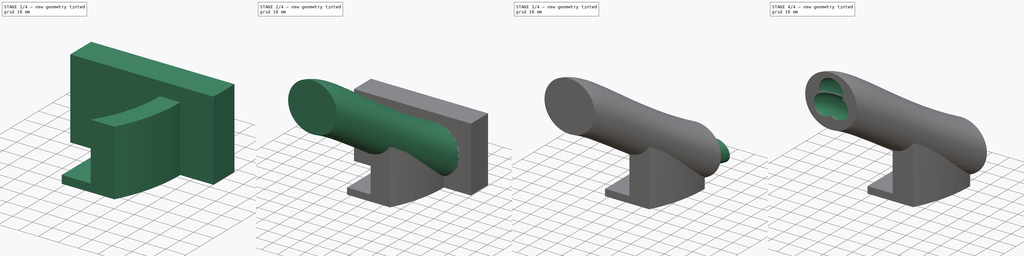
[diagram: build sequence overview — one tinted view per stage of 4, left to right]
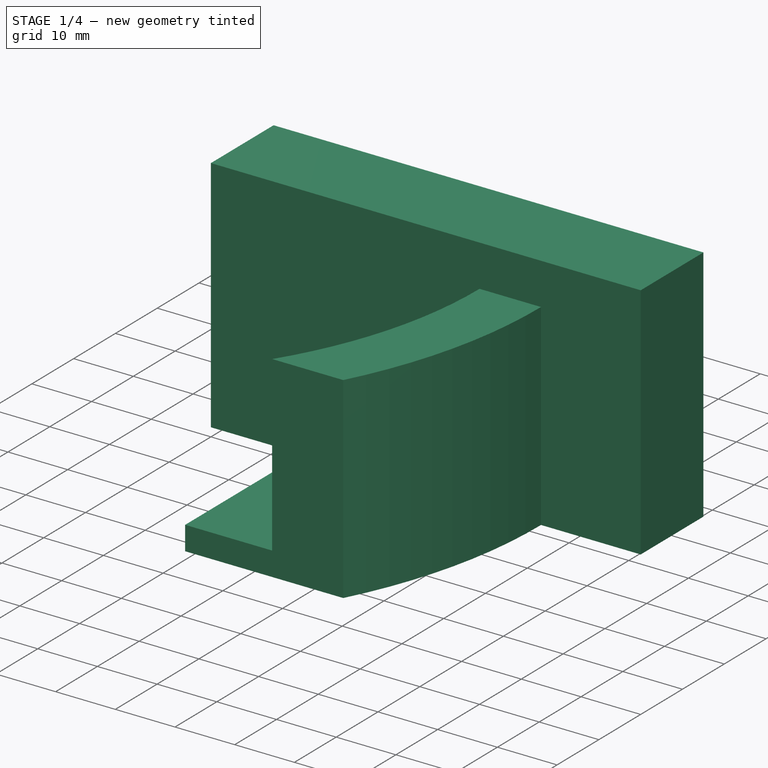
[diagram: stage 1 of 4 — iso view after this stage's code; geometry added in this stage tinted green]
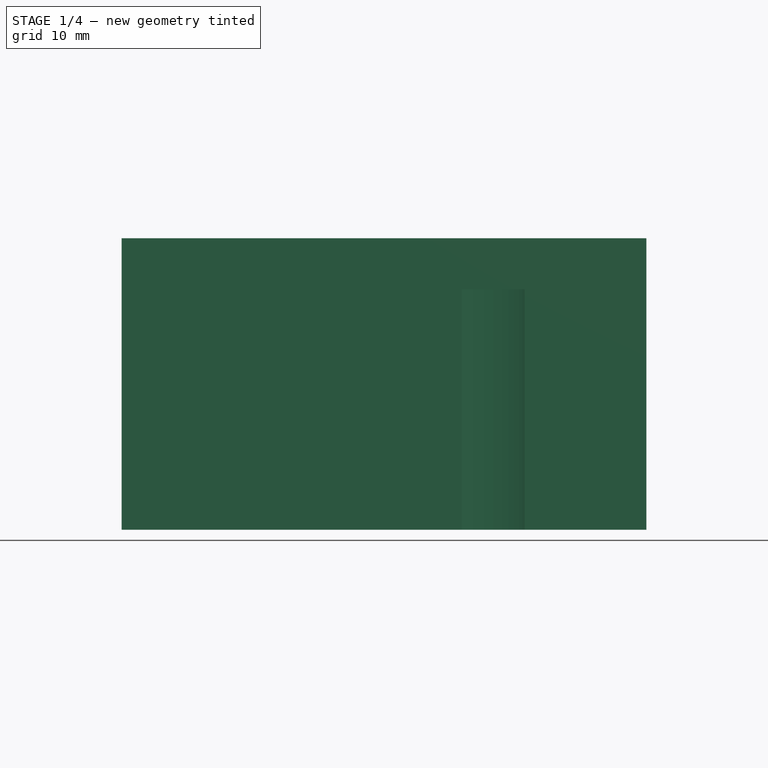
[diagram: stage 1 of 4 — front view after this stage's code; geometry added in this stage tinted green]
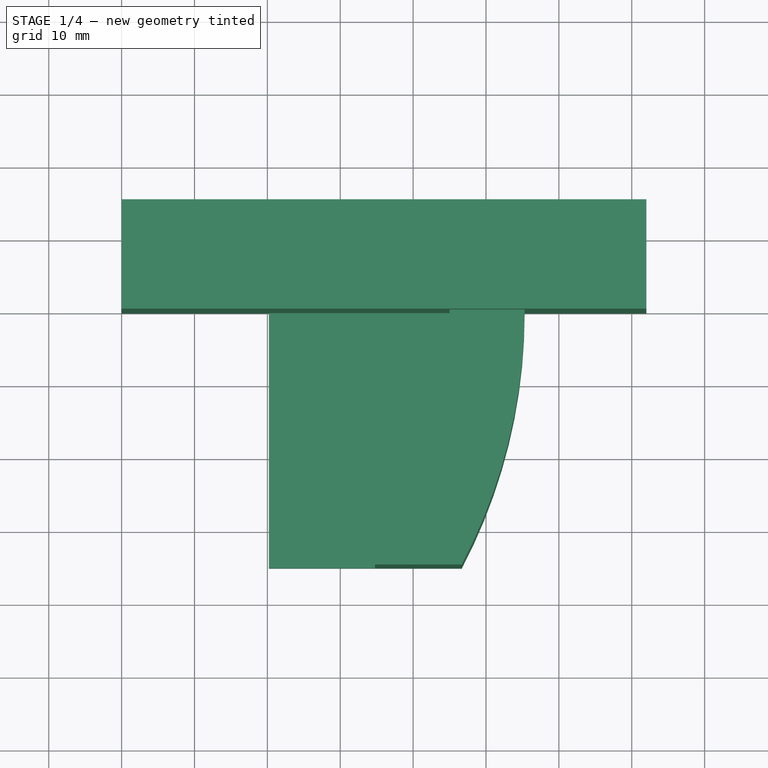
[diagram: stage 1 of 4 — top view after this stage's code; geometry added in this stage tinted green]
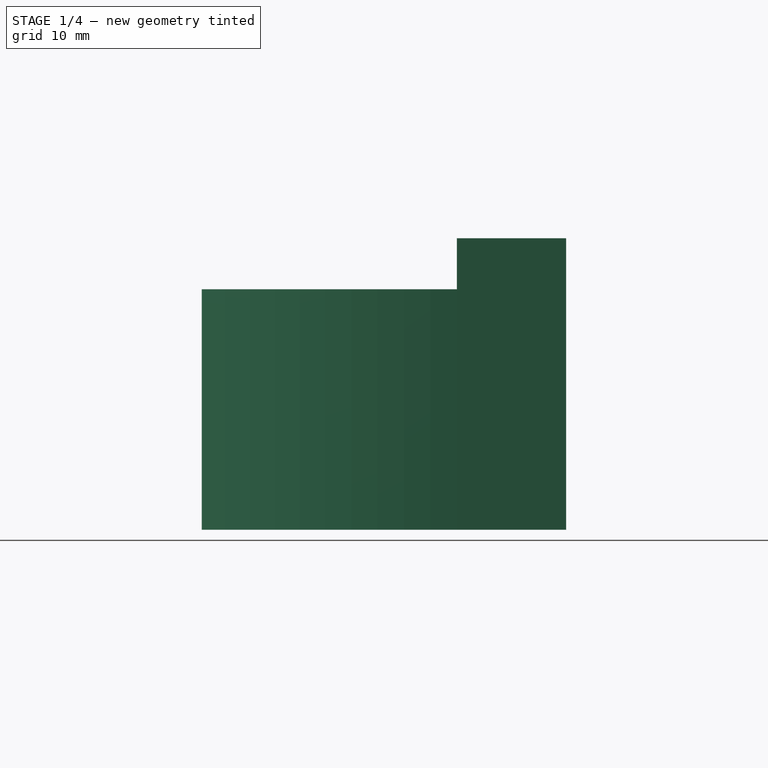
[diagram: stage 1 of 4 — right view after this stage's code; geometry added in this stage tinted green]
FCSTD DOCUMENT  (FreeCAD 1.0R39285 (Git))
Label: threeWayPipeV2
License: All rights reserved
LicenseURL: http://en.wikipedia.org/wiki/All_rights_reserved
objects: Sketcher::SketchObject×32, PartDesign::ShapeBinder×5, PartDesign::AdditivePipe×5, PartDesign::Body×5, Part::MultiFuse×3, Part::Extrusion×2, Part::Cut×2, Part::Part2DObjectPython×1, Part::Box×1
note: 98 computed .brp shape members not serialized (recipe doc carries the construction recipe); baked Part::Feature solids carry a one-line shape summary decoded from their .brp

FEATURE [Sketcher::SketchObject] Sketch039
  ArcFitTolerance = 1e-06
  FullyConstrained = true
  MakeInternals = false
  sketch-geometry (4):
    g0: ArcOfCircle CenterX=-20 CenterY=0 CenterZ=0 NormalX=0 NormalY=0 NormalZ=1 AngleXU=0 Radius=75.3 StartAngle=5.79977 EndAngle=6.28319
    g1: LineSegment StartX=20.2 StartY=0 StartZ=0 EndX=55.3 EndY=-1.84e-14 EndZ=0
    g2: LineSegment StartX=20.2 StartY=0 StartZ=0 EndX=20.2 EndY=-35 EndZ=0
    g3: LineSegment StartX=20.2 StartY=-35 StartZ=0 EndX=46.6715 EndY=-35 EndZ=0
  constraints (13):
    c: PointOnObject(g0,g-1)
    c: PointOnObject(g0,g-1)
    c: DistanceX(g0) = -20
    c: DistanceY(g0) = -35
    c: Radius(g0) = 75.3
    c: PointOnObject(g1,g-1)
    c: Coincident(g1,g0)
    c: DistanceX(g1) = 20.2
    c: Coincident(g2,g1)
    c: Vertical(g2)
    c: Coincident(g3,g2)
    c: Coincident(g3,g0)
    c: Horizontal(g3)
FEATURE [Part::Extrusion] Extrude001
  Base = -> Sketch039
  Dir = (0,0,1)
  DirMode = 2
  FaceMakerClass = Part::FaceMakerBullseye
  FaceMakerMode = 3
  LengthFwd = 4
  LengthRev = 0
  Solid = true
  Symmetric = false
FEATURE [Sketcher::SketchObject] Sketch040
  ArcFitTolerance = 1e-06
  FullyConstrained = true
  MakeInternals = false
  sketch-geometry (4):
    g0: ArcOfCircle CenterX=-20 CenterY=0 CenterZ=0 NormalX=0 NormalY=0 NormalZ=1 AngleXU=0 Radius=75.3 StartAngle=5.79977 EndAngle=6.28319
    g1: ArcOfCircle CenterX=-20 CenterY=0 CenterZ=0 NormalX=0 NormalY=0 NormalZ=1 AngleXU=0 Radius=65 StartAngle=5.71458 EndAngle=6.28319
    g2: LineSegment StartX=34.7723 StartY=-35 StartZ=0 EndX=46.6715 EndY=-35 EndZ=0
    g3: LineSegment StartX=45 StartY=-1.59e-14 StartZ=0 EndX=55.3 EndY=-1.84e-14 EndZ=0
  constraints (13):
    c: PointOnObject(g0,g-1)
    c: PointOnObject(g0,g-1)
    c: DistanceX(g0) = -20
    c: DistanceY(g0) = -35
    c: Radius(g0) = 75.3
    c: Coincident(g1,g0)
    c: PointOnObject(g1,g-1)
    c: Horizontal(g1,g0)
    c: Radius(g1) = 65
    c: Coincident(g2,g1)
    c: Coincident(g2,g0)
    c: Coincident(g3,g1)
    c: Coincident(g3,g0)
FEATURE [Part::Extrusion] Extrude002
  Base = -> Sketch040
  Dir = (0,0,1)
  DirMode = 2
  FaceMakerClass = Part::FaceMakerBullseye
  FaceMakerMode = 3
  LengthFwd = 33
  LengthRev = 0
  Solid = true
  Symmetric = false
FEATURE [Part::Box] Box  label="Cube"
  AttacherType = Attacher::AttachEngine3D
  Height = 40
  Length = 72
  Width = 15
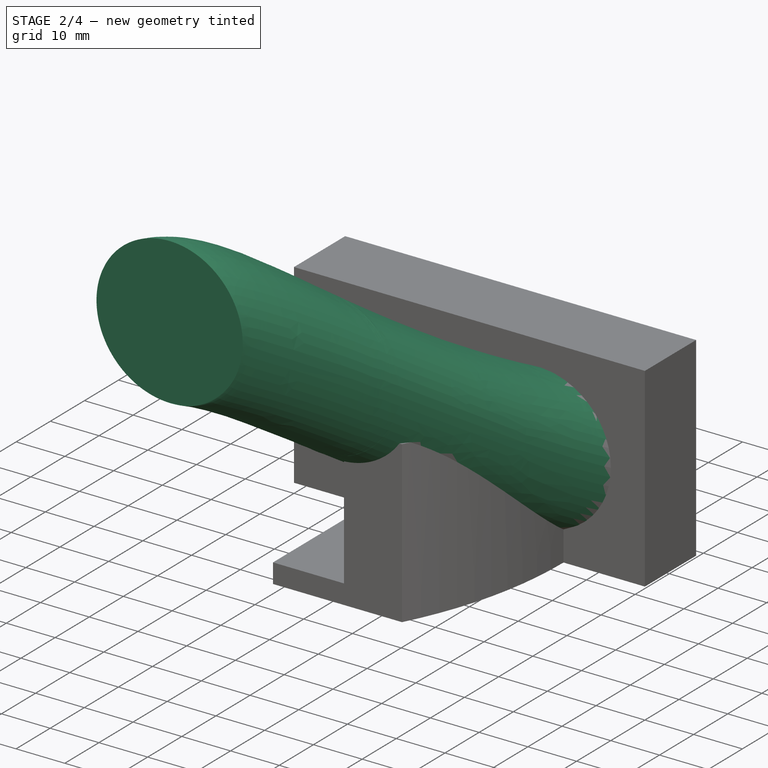
[diagram: stage 2 of 4 — iso view after this stage's code; geometry added in this stage tinted green]
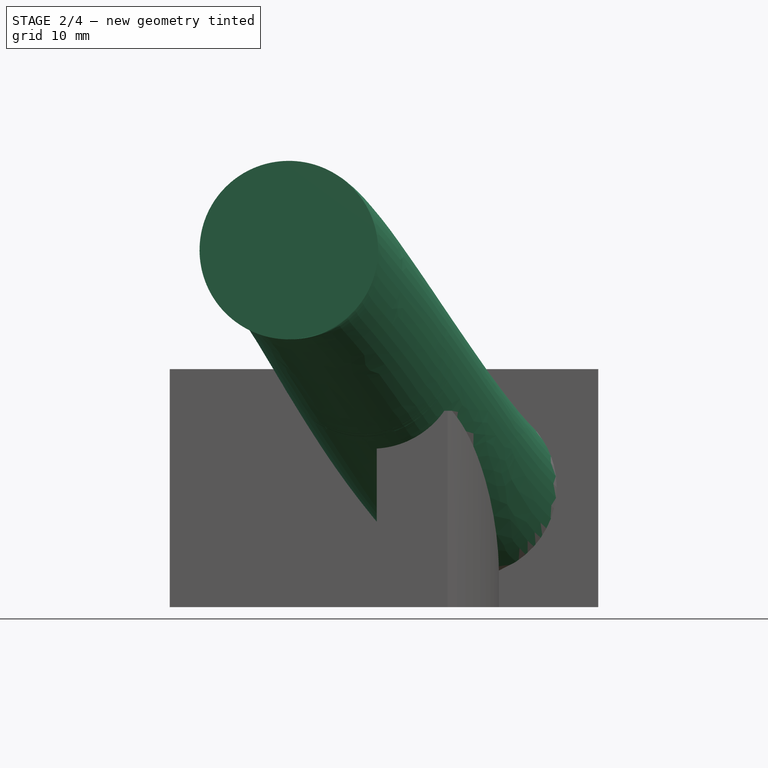
[diagram: stage 2 of 4 — front view after this stage's code; geometry added in this stage tinted green]
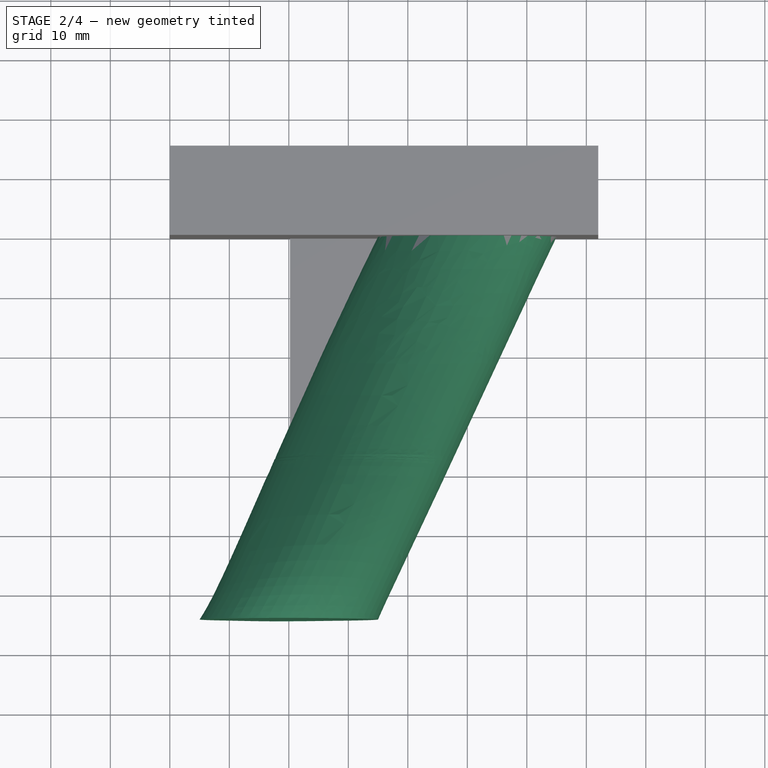
[diagram: stage 2 of 4 — top view after this stage's code; geometry added in this stage tinted green]
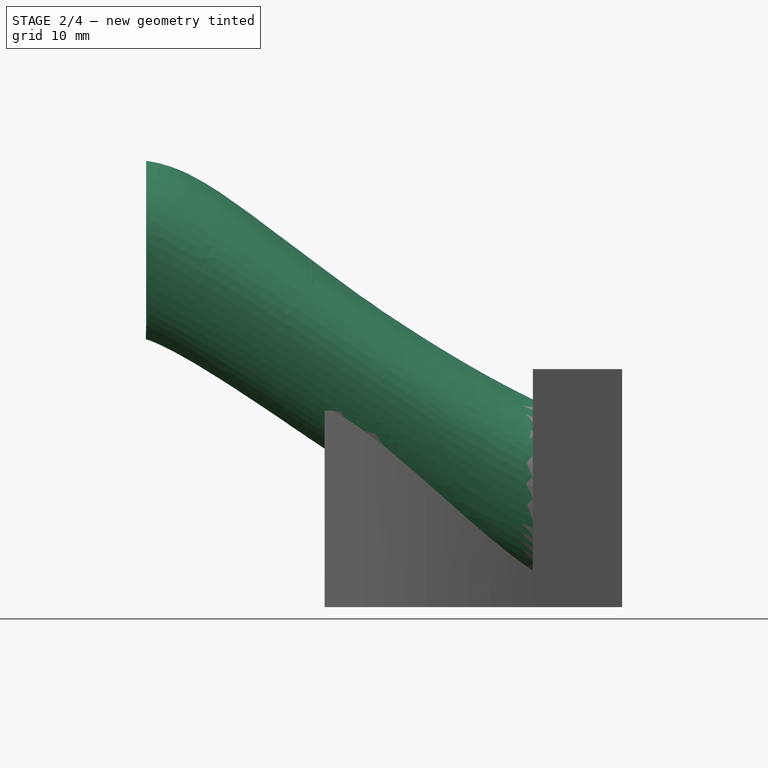
[diagram: stage 2 of 4 — right view after this stage's code; geometry added in this stage tinted green]
FEATURE [PartDesign::Body] Body003  label="below001"
  AllowCompound = false
  Group = -> [Sketch031,Sketch030,Sketch032,Sketch027,Sketch028,Sketch029,AdditivePipe003,CopyBezCurve003]
  Origin = -> Origin003
  Placement = pos=(-4,0,-3) rot=(0,0,1;0rad)
  Tip = -> AdditivePipe003
FEATURE [PartDesign::ShapeBinder] CopyBezCurve004
  TraceSupport = false
FEATURE [Sketcher::SketchObject] Sketch033
  ArcFitTolerance = 1e-06
  AttachmentOffset = pos=(0,0,20) rot=(0,0,1;0rad)
  AttachmentSupport = -> [XY_Plane005]
  FullyConstrained = true
  MakeInternals = false
  MapMode = 5
  Placement = pos=(0,0,20) rot=(0,0,1;0rad)
  sketch-geometry (1):
    g0: LineSegment StartX=50 StartY=0 StartZ=0 EndX=55.7735 EndY=10 EndZ=0
  constraints (4):
    c: PointOnObject(g0,g-1)
    c: DistanceX(g0) = 50
    c: Angle(g0) = 1.0472
    c: DistanceY(g0,g0) = 10
FEATURE [Sketcher::SketchObject] Sketch034
  ArcFitTolerance = 1e-06
  AttachmentOffset = pos=(0,0,60) rot=(0,0,1;0rad)
  AttachmentSupport = -> [XY_Plane005]
  FullyConstrained = true
  MakeInternals = false
  MapMode = 5
  Placement = pos=(0,0,60) rot=(0,0,1;0rad)
  sketch-geometry (1):
    g0: LineSegment StartX=20 StartY=-65 StartZ=0 EndX=25.7735 EndY=-55 EndZ=0
  constraints (4):
    c: DistanceY(g0,g0) = 10
    c: DistanceY(g0) = -65
    c: DistanceX(g0) = 20
    c: Angle(g0) = 1.0472
FEATURE [Sketcher::SketchObject] Sketch035
  ArcFitTolerance = 1e-06
  AttachmentOffset = pos=(0,0,40) rot=(0,0,1;0rad)
  AttachmentSupport = -> [XY_Plane005]
  FullyConstrained = true
  MakeInternals = false
  MapMode = 5
  Placement = pos=(0,0,40) rot=(0,0,1;0rad)
  sketch-geometry (1):
    g0: LineSegment StartX=38.501 StartY=-27.5 StartZ=0 EndX=35 EndY=-32.5 EndZ=0
  constraints (4):
    c: DistanceX(g0) = 35
    c: DistanceY(g0) = -32.5
    c: DistanceY(g0,g0) = 5
    c: Angle(g0) = -2.18166
FEATURE [Sketcher::SketchObject] Sketch036
  ArcFitTolerance = 1e-06
  AttachmentOffset = pos=(0,15,0) rot=(0,0,1;0rad)
  FullyConstrained = true
  MakeInternals = false
  MapMode = 5
  Placement = pos=(0,-65,0) rot=(1,0,0;1.5708rad)
  sketch-geometry (1):
    g0: Circle CenterX=20 CenterY=60 CenterZ=0 NormalX=0 NormalY=0 NormalZ=1 AngleXU=0 Radius=15
  constraints (3):
    c: Radius(g0) = 15
    c: DistanceX(g0) = 20
    c: DistanceY(g0) = 60
FEATURE [Sketcher::SketchObject] Sketch037
  ArcFitTolerance = 1e-06
  FullyConstrained = true
  MakeInternals = false
  MapMode = 5
  Placement = pos=(0,0,0) rot=(1,0,0;1.5708rad)
  sketch-geometry (1):
    g0: Circle CenterX=50 CenterY=20 CenterZ=0 NormalX=0 NormalY=0 NormalZ=1 AngleXU=0 Radius=15
  constraints (3):
    c: Radius(g0) = 15
    c: DistanceX(g0) = 50
    c: DistanceY(g0) = 20
FEATURE [Sketcher::SketchObject] Sketch038
  ArcFitTolerance = 1e-06
  AttachmentOffset = pos=(0,15,0) rot=(0,0,1;0rad)
  FullyConstrained = true
  MakeInternals = false
  MapMode = 5
  Placement = pos=(0,-32.5,0) rot=(1,0,0;1.5708rad)
  sketch-geometry (1):
    g0: Circle CenterX=35 CenterY=40 CenterZ=0 NormalX=0 NormalY=0 NormalZ=1 AngleXU=0 Radius=15
  constraints (3):
    c: Radius(g0) = 15
    c: DistanceX(g0) = 35
    c: DistanceY(g0) = 40
FEATURE [PartDesign::AdditivePipe] AdditivePipe004
  AuxilleryCurvelinear = true
  AuxillerySpineTangent = false
  Binormal = (0,0,0)
  Mode = 0
  Placement = pos=(0,-65,0) rot=(1,0,0;1.5708rad)
  Profile = -> Sketch036
  Sections = -> [Sketch037,Sketch038]
  Spine = -> CopyBezCurve004
  SpineTangent = false
  Suppressed = false
  Transformation = 1
  Transition = 0
FEATURE [Part::MultiFuse] Fusion001
  Shapes = -> [Extrude001,Extrude002]
FEATURE [Part::MultiFuse] Fusion002  label="outer001"
  Shapes = -> [Fusion001,Body004]
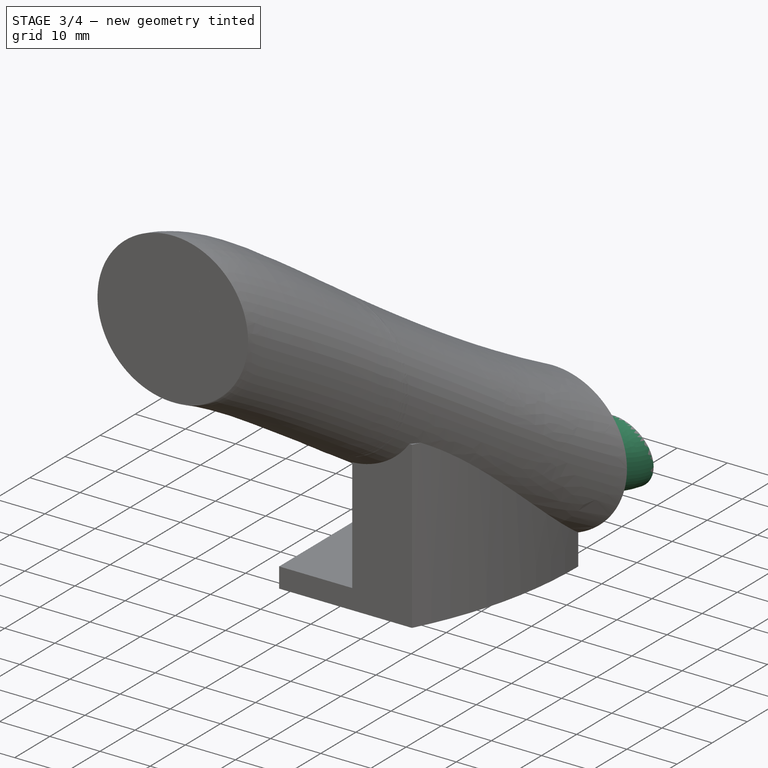
[diagram: stage 3 of 4 — iso view after this stage's code; geometry added in this stage tinted green]
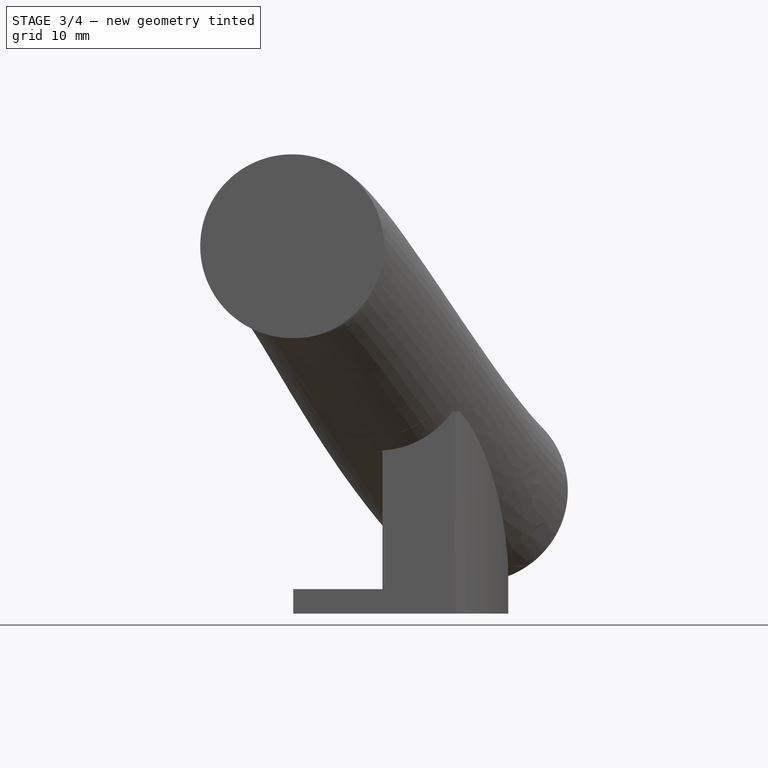
[diagram: stage 3 of 4 — front view after this stage's code; geometry added in this stage tinted green]
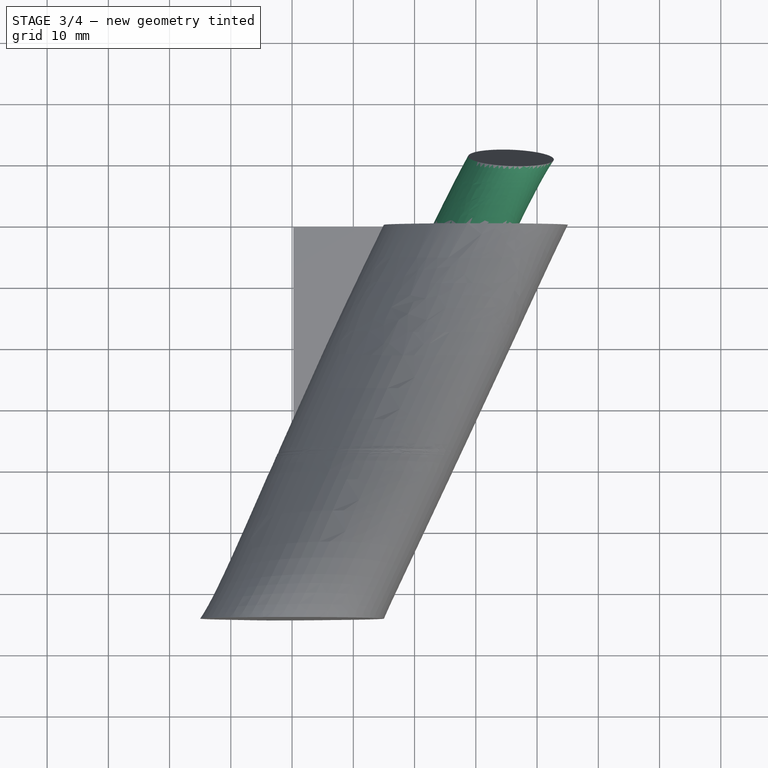
[diagram: stage 3 of 4 — top view after this stage's code; geometry added in this stage tinted green]
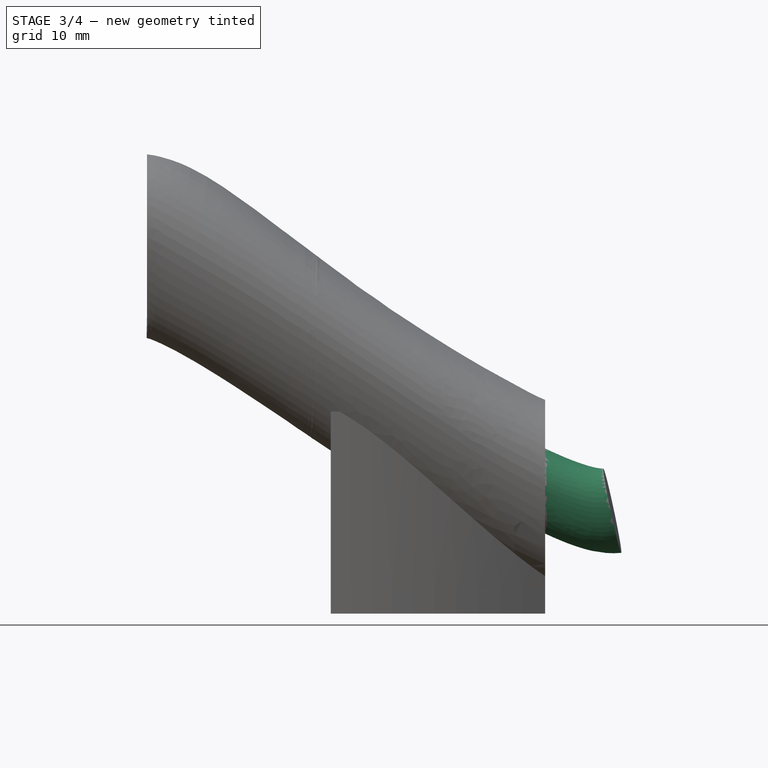
[diagram: stage 3 of 4 — right view after this stage's code; geometry added in this stage tinted green]
FEATURE [PartDesign::Body] Body  label="original"
  AllowCompound = false
  Group = -> [Sketch013,Sketch012,Sketch014,Sketch009,Sketch010,Sketch011,AdditivePipe,CopyBezCurve]
  Origin = -> Origin
  Tip = -> AdditivePipe
FEATURE [PartDesign::ShapeBinder] CopyBezCurve001
  TraceSupport = false
FEATURE [Sketcher::SketchObject] Sketch015
  ArcFitTolerance = 1e-06
  AttachmentOffset = pos=(0,0,20) rot=(0,0,1;0rad)
  AttachmentSupport = -> [XY_Plane002]
  FullyConstrained = true
  MakeInternals = false
  MapMode = 5
  Placement = pos=(0,0,20) rot=(0,0,1;0rad)
  sketch-geometry (1):
    g0: LineSegment StartX=50 StartY=0 StartZ=0 EndX=55.7735 EndY=10 EndZ=0
  constraints (4):
    c: PointOnObject(g0,g-1)
    c: DistanceX(g0) = 50
    c: Angle(g0) = 1.0472
    c: DistanceY(g0,g0) = 10
FEATURE [Sketcher::SketchObject] Sketch016
  ArcFitTolerance = 1e-06
  AttachmentOffset = pos=(0,0,60) rot=(0,0,1;0rad)
  AttachmentSupport = -> [XY_Plane002]
  FullyConstrained = true
  MakeInternals = false
  MapMode = 5
  Placement = pos=(0,0,60) rot=(0,0,1;0rad)
  sketch-geometry (1):
    g0: LineSegment StartX=20 StartY=-65 StartZ=0 EndX=25.7735 EndY=-55 EndZ=0
  constraints (4):
    c: DistanceY(g0,g0) = 10
    c: DistanceY(g0) = -65
    c: DistanceX(g0) = 20
    c: Angle(g0) = 1.0472
FEATURE [Sketcher::SketchObject] Sketch017
  ArcFitTolerance = 1e-06
  AttachmentOffset = pos=(0,0,40) rot=(0,0,1;0rad)
  AttachmentSupport = -> [XY_Plane002]
  FullyConstrained = true
  MakeInternals = false
  MapMode = 5
  Placement = pos=(0,0,40) rot=(0,0,1;0rad)
  sketch-geometry (1):
    g0: LineSegment StartX=38.501 StartY=-27.5 StartZ=0 EndX=35 EndY=-32.5 EndZ=0
  constraints (4):
    c: DistanceX(g0) = 35
    c: DistanceY(g0) = -32.5
    c: DistanceY(g0,g0) = 5
    c: Angle(g0) = -2.18166
FEATURE [Sketcher::SketchObject] Sketch018
  ArcFitTolerance = 1e-06
  AttachmentOffset = pos=(0,15,0) rot=(0,0,1;0rad)
  FullyConstrained = true
  MakeInternals = false
  MapMode = 5
  Placement = pos=(0,-65,0) rot=(1,0,0;1.5708rad)
  sketch-geometry (1):
    g0: Circle CenterX=20 CenterY=60 CenterZ=0 NormalX=0 NormalY=0 NormalZ=1 AngleXU=0 Radius=7
  constraints (3):
    c: Radius(g0) = 7
    c: DistanceX(g0) = 20
    c: DistanceY(g0) = 60
FEATURE [Sketcher::SketchObject] Sketch019
  ArcFitTolerance = 1e-06
  FullyConstrained = true
  MakeInternals = false
  MapMode = 5
  Placement = pos=(0,0,0) rot=(1,0,0;1.5708rad)
  sketch-geometry (1):
    g0: Circle CenterX=50 CenterY=20 CenterZ=0 NormalX=0 NormalY=0 NormalZ=1 AngleXU=0 Radius=7
  constraints (3):
    c: Radius(g0) = 7
    c: DistanceX(g0) = 50
    c: DistanceY(g0) = 20
FEATURE [Sketcher::SketchObject] Sketch020
  ArcFitTolerance = 1e-06
  AttachmentOffset = pos=(0,15,0) rot=(0,0,1;0rad)
  FullyConstrained = true
  MakeInternals = false
  MapMode = 5
  Placement = pos=(0,-32.5,0) rot=(1,0,0;1.5708rad)
  sketch-geometry (1):
    g0: Circle CenterX=35 CenterY=40 CenterZ=0 NormalX=0 NormalY=0 NormalZ=1 AngleXU=0 Radius=7
  constraints (3):
    c: Radius(g0) = 7
    c: DistanceX(g0) = 35
    c: DistanceY(g0) = 40
FEATURE [PartDesign::AdditivePipe] AdditivePipe001
  AuxilleryCurvelinear = true
  AuxillerySpineTangent = false
  Binormal = (0,0,0)
  Mode = 0
  Placement = pos=(0,-65,0) rot=(1,0,0;1.5708rad)
  Profile = -> Sketch018
  Sections = -> [Sketch019,Sketch020]
  Spine = -> CopyBezCurve001
  SpineTangent = false
  Suppressed = false
  Transformation = 1
  Transition = 0
FEATURE [PartDesign::Body] Body001  label="top"
  AllowCompound = false
  Group = -> [Sketch019,Sketch018,Sketch020,Sketch015,Sketch016,Sketch017,AdditivePipe001,CopyBezCurve001]
  Origin = -> Origin001
  Placement = pos=(0,0,5) rot=(0,0,1;0rad)
  Tip = -> AdditivePipe001
FEATURE [PartDesign::ShapeBinder] CopyBezCurve002
  TraceSupport = false
FEATURE [Sketcher::SketchObject] Sketch021
  ArcFitTolerance = 1e-06
  AttachmentOffset = pos=(0,0,20) rot=(0,0,1;0rad)
  AttachmentSupport = -> [XY_Plane003]
  FullyConstrained = true
  MakeInternals = false
  MapMode = 5
  Placement = pos=(0,0,20) rot=(0,0,1;0rad)
  sketch-geometry (1):
    g0: LineSegment StartX=50 StartY=0 StartZ=0 EndX=55.7735 EndY=10 EndZ=0
  constraints (4):
    c: PointOnObject(g0,g-1)
    c: DistanceX(g0) = 50
    c: Angle(g0) = 1.0472
    c: DistanceY(g0,g0) = 10
FEATURE [Sketcher::SketchObject] Sketch022
  ArcFitTolerance = 1e-06
  AttachmentOffset = pos=(0,0,60) rot=(0,0,1;0rad)
  AttachmentSupport = -> [XY_Plane003]
  FullyConstrained = true
  MakeInternals = false
  MapMode = 5
  Placement = pos=(0,0,60) rot=(0,0,1;0rad)
  sketch-geometry (1):
    g0: LineSegment StartX=20 StartY=-65 StartZ=0 EndX=25.7735 EndY=-55 EndZ=0
  constraints (4):
    c: DistanceY(g0,g0) = 10
    c: DistanceY(g0) = -65
    c: DistanceX(g0) = 20
    c: Angle(g0) = 1.0472
FEATURE [Sketcher::SketchObject] Sketch023
  ArcFitTolerance = 1e-06
  AttachmentOffset = pos=(0,0,40) rot=(0,0,1;0rad)
  AttachmentSupport = -> [XY_Plane003]
  FullyConstrained = true
  MakeInternals = false
  MapMode = 5
  Placement = pos=(0,0,40) rot=(0,0,1;0rad)
  sketch-geometry (1):
    g0: LineSegment StartX=38.501 StartY=-27.5 StartZ=0 EndX=35 EndY=-32.5 EndZ=0
  constraints (4):
    c: DistanceX(g0) = 35
    c: DistanceY(g0) = -32.5
    c: DistanceY(g0,g0) = 5
    c: Angle(g0) = -2.18166
FEATURE [Sketcher::SketchObject] Sketch024
  ArcFitTolerance = 1e-06
  AttachmentOffset = pos=(0,15,0) rot=(0,0,1;0rad)
  FullyConstrained = true
  MakeInternals = false
  MapMode = 5
  Placement = pos=(0,-65,0) rot=(1,0,0;1.5708rad)
  sketch-geometry (1):
    g0: Circle CenterX=20 CenterY=60 CenterZ=0 NormalX=0 NormalY=0 NormalZ=1 AngleXU=0 Radius=6
  constraints (3):
    c: Radius(g0) = 6
    c: DistanceX(g0) = 20
    c: DistanceY(g0) = 60
FEATURE [Sketcher::SketchObject] Sketch025
  ArcFitTolerance = 1e-06
  FullyConstrained = true
  MakeInternals = false
  MapMode = 5
  Placement = pos=(0,0,0) rot=(1,0,0;1.5708rad)
  sketch-geometry (1):
    g0: Circle CenterX=50 CenterY=20 CenterZ=0 NormalX=0 NormalY=0 NormalZ=1 AngleXU=0 Radius=6
  constraints (3):
    c: Radius(g0) = 6
    c: DistanceX(g0) = 50
    c: DistanceY(g0) = 20
FEATURE [Sketcher::SketchObject] Sketch026
  ArcFitTolerance = 1e-06
  AttachmentOffset = pos=(0,15,0) rot=(0,0,1;0rad)
  FullyConstrained = true
  MakeInternals = false
  MapMode = 5
  Placement = pos=(0,-32.5,0) rot=(1,0,0;1.5708rad)
  sketch-geometry (1):
    g0: Circle CenterX=35 CenterY=40 CenterZ=0 NormalX=0 NormalY=0 NormalZ=1 AngleXU=0 Radius=6
  constraints (3):
    c: Radius(g0) = 6
    c: DistanceX(g0) = 35
    c: DistanceY(g0) = 40
FEATURE [PartDesign::AdditivePipe] AdditivePipe002
  AuxilleryCurvelinear = true
  AuxillerySpineTangent = false
  Binormal = (0,0,0)
  Mode = 0
  Placement = pos=(0,-65,0) rot=(1,0,0;1.5708rad)
  Profile = -> Sketch024
  Sections = -> [Sketch025,Sketch026]
  Spine = -> CopyBezCurve002
  SpineTangent = false
  Suppressed = false
  Transformation = 1
  Transition = 0
FEATURE [PartDesign::Body] Body002  label="below"
  AllowCompound = false
  Group = -> [Sketch025,Sketch024,Sketch026,Sketch021,Sketch022,Sketch023,AdditivePipe002,CopyBezCurve002]
  Origin = -> Origin002
  Placement = pos=(4,0,-3) rot=(0,0,1;0rad)
  Tip = -> AdditivePipe002
FEATURE [PartDesign::ShapeBinder] CopyBezCurve003
  TraceSupport = false
FEATURE [Sketcher::SketchObject] Sketch027
  ArcFitTolerance = 1e-06
  AttachmentOffset = pos=(0,0,20) rot=(0,0,1;0rad)
  AttachmentSupport = -> [XY_Plane004]
  FullyConstrained = true
  MakeInternals = false
  MapMode = 5
  Placement = pos=(0,0,20) rot=(0,0,1;0rad)
  sketch-geometry (1):
    g0: LineSegment StartX=50 StartY=0 StartZ=0 EndX=55.7735 EndY=10 EndZ=0
  constraints (4):
    c: PointOnObject(g0,g-1)
    c: DistanceX(g0) = 50
    c: Angle(g0) = 1.0472
    c: DistanceY(g0,g0) = 10
FEATURE [Sketcher::SketchObject] Sketch028
  ArcFitTolerance = 1e-06
  AttachmentOffset = pos=(0,0,60) rot=(0,0,1;0rad)
  AttachmentSupport = -> [XY_Plane004]
  FullyConstrained = true
  MakeInternals = false
  MapMode = 5
  Placement = pos=(0,0,60) rot=(0,0,1;0rad)
  sketch-geometry (1):
    g0: LineSegment StartX=20 StartY=-65 StartZ=0 EndX=25.7735 EndY=-55 EndZ=0
  constraints (4):
    c: DistanceY(g0,g0) = 10
    c: DistanceY(g0) = -65
    c: DistanceX(g0) = 20
    c: Angle(g0) = 1.0472
FEATURE [Sketcher::SketchObject] Sketch029
  ArcFitTolerance = 1e-06
  AttachmentOffset = pos=(0,0,40) rot=(0,0,1;0rad)
  AttachmentSupport = -> [XY_Plane004]
  FullyConstrained = true
  MakeInternals = false
  MapMode = 5
  Placement = pos=(0,0,40) rot=(0,0,1;0rad)
  sketch-geometry (1):
    g0: LineSegment StartX=38.501 StartY=-27.5 StartZ=0 EndX=35 EndY=-32.5 EndZ=0
  constraints (4):
    c: DistanceX(g0) = 35
    c: DistanceY(g0) = -32.5
    c: DistanceY(g0,g0) = 5
    c: Angle(g0) = -2.18166
FEATURE [Sketcher::SketchObject] Sketch030
  ArcFitTolerance = 1e-06
  AttachmentOffset = pos=(0,15,0) rot=(0,0,1;0rad)
  FullyConstrained = true
  MakeInternals = false
  MapMode = 5
  Placement = pos=(0,-65,0) rot=(1,0,0;1.5708rad)
  sketch-geometry (1):
    g0: Circle CenterX=20 CenterY=60 CenterZ=0 NormalX=0 NormalY=0 NormalZ=1 AngleXU=0 Radius=6
  constraints (3):
    c: Radius(g0) = 6
    c: DistanceX(g0) = 20
    c: DistanceY(g0) = 60
FEATURE [Sketcher::SketchObject] Sketch031
  ArcFitTolerance = 1e-06
  FullyConstrained = true
  MakeInternals = false
  MapMode = 5
  Placement = pos=(0,0,0) rot=(1,0,0;1.5708rad)
  sketch-geometry (1):
    g0: Circle CenterX=50 CenterY=20 CenterZ=0 NormalX=0 NormalY=0 NormalZ=1 AngleXU=0 Radius=6
  constraints (3):
    c: Radius(g0) = 6
    c: DistanceX(g0) = 50
    c: DistanceY(g0) = 20
FEATURE [Sketcher::SketchObject] Sketch032
  ArcFitTolerance = 1e-06
  AttachmentOffset = pos=(0,15,0) rot=(0,0,1;0rad)
  FullyConstrained = true
  MakeInternals = false
  MapMode = 5
  Placement = pos=(0,-32.5,0) rot=(1,0,0;1.5708rad)
  sketch-geometry (1):
    g0: Circle CenterX=35 CenterY=40 CenterZ=0 NormalX=0 NormalY=0 NormalZ=1 AngleXU=0 Radius=6
  constraints (3):
    c: Radius(g0) = 6
    c: DistanceX(g0) = 35
    c: DistanceY(g0) = 40
FEATURE [PartDesign::AdditivePipe] AdditivePipe003
  AuxilleryCurvelinear = true
  AuxillerySpineTangent = false
  Binormal = (0,0,0)
  Mode = 0
  Placement = pos=(0,-65,0) rot=(1,0,0;1.5708rad)
  Profile = -> Sketch030
  Sections = -> [Sketch031,Sketch032]
  Spine = -> CopyBezCurve003
  SpineTangent = false
  Suppressed = false
  Transformation = 1
  Transition = 0
FEATURE [Part::Cut] Cut  label="outer002"
  Base = -> Fusion002
  Tool = -> Box
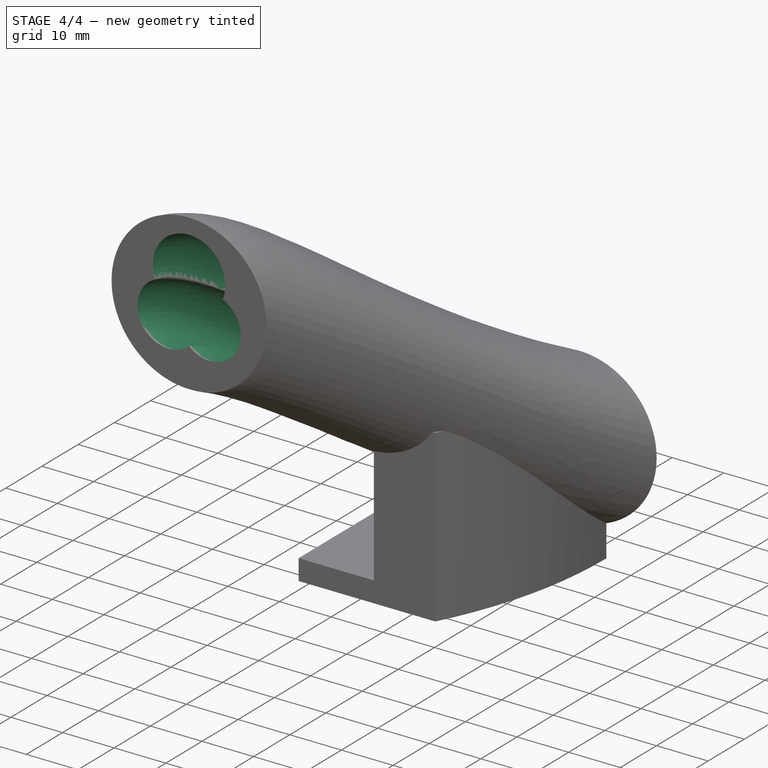
[diagram: stage 4 of 4 — iso view after this stage's code; geometry added in this stage tinted green]
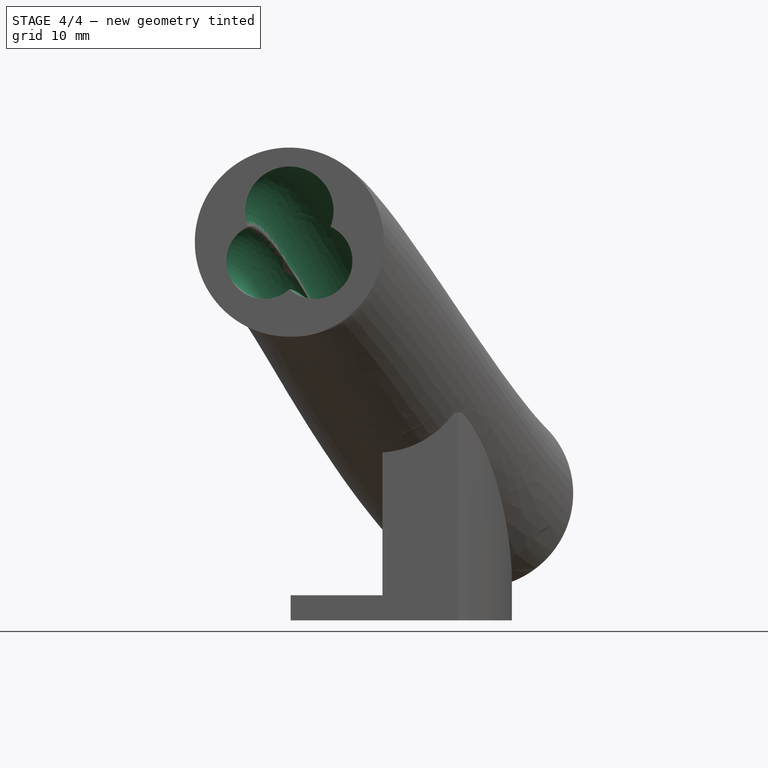
[diagram: stage 4 of 4 — front view after this stage's code; geometry added in this stage tinted green]
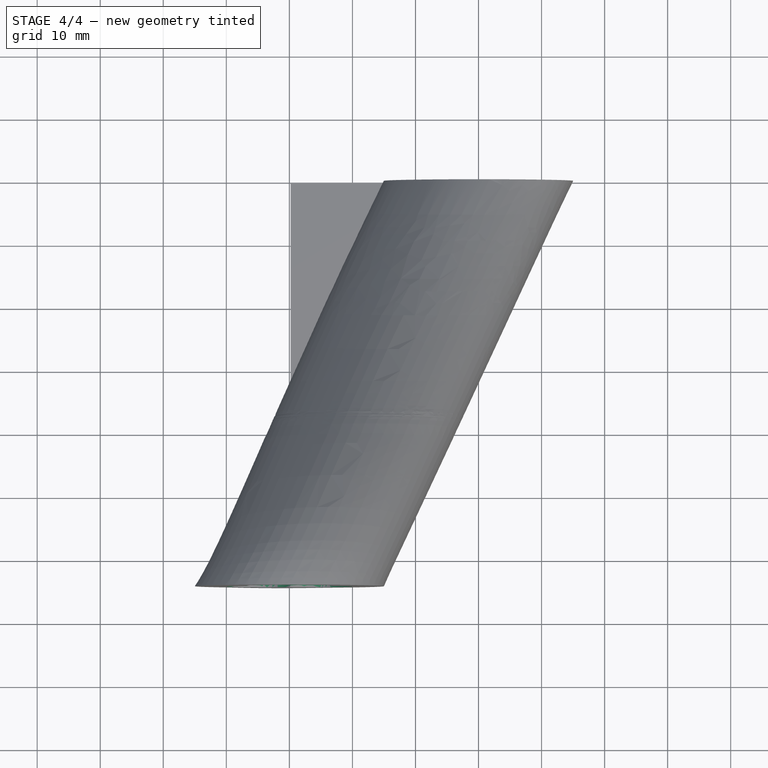
[diagram: stage 4 of 4 — top view after this stage's code; geometry added in this stage tinted green]
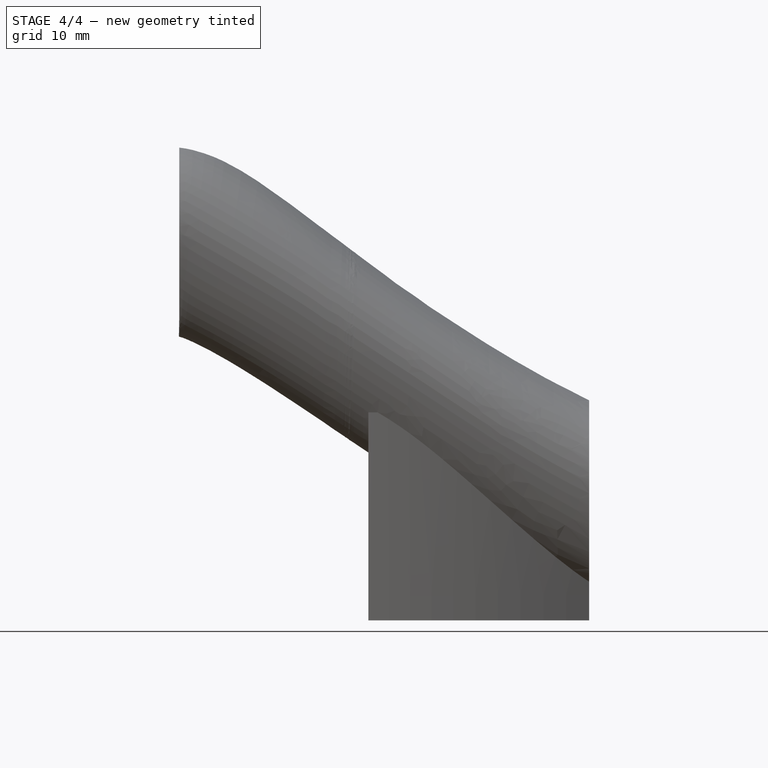
[diagram: stage 4 of 4 — right view after this stage's code; geometry added in this stage tinted green]
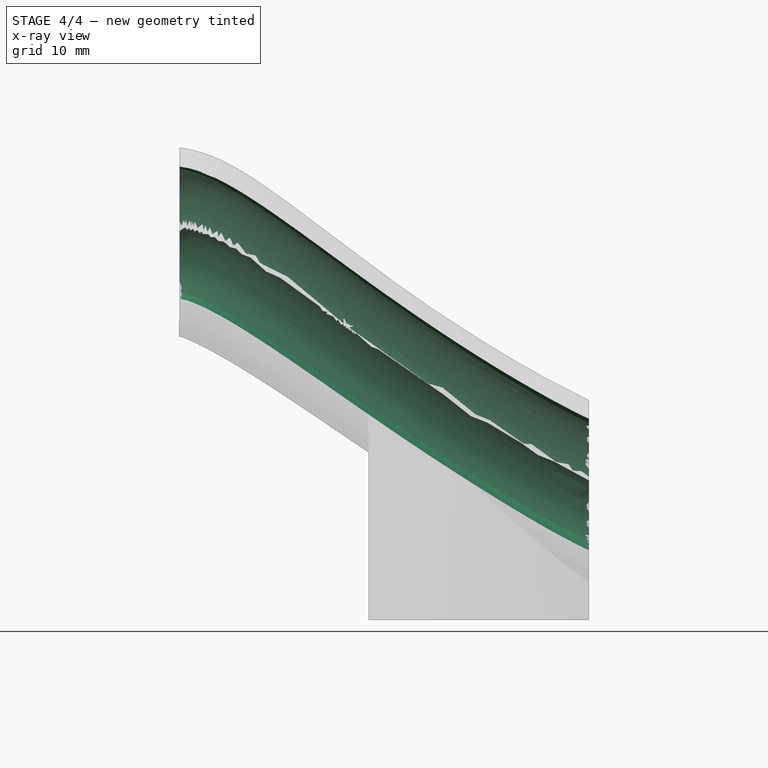
[diagram: stage 4 of 4 — x-ray composite at the right view; earlier geometry ghosted, this stage's added geometry solid]
FEATURE [Sketcher::SketchObject] Sketch013
  ArcFitTolerance = 1e-06
  FullyConstrained = true
  MakeInternals = false
  MapMode = 5
  Placement = pos=(0,0,0) rot=(1,0,0;1.5708rad)
  sketch-geometry (1):
    g0: Circle CenterX=50 CenterY=20 CenterZ=0 NormalX=0 NormalY=0 NormalZ=1 AngleXU=0 Radius=7
  constraints (3):
    c: Radius(g0) = 7
    c: DistanceX(g0) = 50
    c: DistanceY(g0) = 20
FEATURE [Sketcher::SketchObject] Sketch012
  ArcFitTolerance = 1e-06
  AttachmentOffset = pos=(0,15,0) rot=(0,0,1;0rad)
  FullyConstrained = true
  MakeInternals = false
  MapMode = 5
  Placement = pos=(0,-65,0) rot=(1,0,0;1.5708rad)
  sketch-geometry (1):
    g0: Circle CenterX=20 CenterY=60 CenterZ=0 NormalX=0 NormalY=0 NormalZ=1 AngleXU=0 Radius=7
  constraints (3):
    c: Radius(g0) = 7
    c: DistanceX(g0) = 20
    c: DistanceY(g0) = 60
FEATURE [Sketcher::SketchObject] Sketch014
  ArcFitTolerance = 1e-06
  AttachmentOffset = pos=(0,15,0) rot=(0,0,1;0rad)
  FullyConstrained = true
  MakeInternals = false
  MapMode = 5
  Placement = pos=(0,-32.5,0) rot=(1,0,0;1.5708rad)
  sketch-geometry (1):
    g0: Circle CenterX=35 CenterY=40 CenterZ=0 NormalX=0 NormalY=0 NormalZ=1 AngleXU=0 Radius=7
  constraints (3):
    c: Radius(g0) = 7
    c: DistanceX(g0) = 35
    c: DistanceY(g0) = 40
FEATURE [Sketcher::SketchObject] Sketch009
  ArcFitTolerance = 1e-06
  AttachmentOffset = pos=(0,0,20) rot=(0,0,1;0rad)
  AttachmentSupport = -> [XY_Plane001]
  FullyConstrained = true
  MakeInternals = false
  MapMode = 5
  Placement = pos=(0,0,20) rot=(0,0,1;0rad)
  sketch-geometry (1):
    g0: LineSegment StartX=50 StartY=0 StartZ=0 EndX=55.7735 EndY=10 EndZ=0
  constraints (4):
    c: PointOnObject(g0,g-1)
    c: DistanceX(g0) = 50
    c: Angle(g0) = 1.0472
    c: DistanceY(g0,g0) = 10
FEATURE [Sketcher::SketchObject] Sketch010
  ArcFitTolerance = 1e-06
  AttachmentOffset = pos=(0,0,60) rot=(0,0,1;0rad)
  AttachmentSupport = -> [XY_Plane001]
  FullyConstrained = true
  MakeInternals = false
  MapMode = 5
  Placement = pos=(0,0,60) rot=(0,0,1;0rad)
  sketch-geometry (1):
    g0: LineSegment StartX=20 StartY=-65 StartZ=0 EndX=25.7735 EndY=-55 EndZ=0
  constraints (4):
    c: DistanceY(g0,g0) = 10
    c: DistanceY(g0) = -65
    c: DistanceX(g0) = 20
    c: Angle(g0) = 1.0472
FEATURE [Sketcher::SketchObject] Sketch011
  ArcFitTolerance = 1e-06
  AttachmentOffset = pos=(0,0,40) rot=(0,0,1;0rad)
  AttachmentSupport = -> [XY_Plane001]
  FullyConstrained = true
  MakeInternals = false
  MapMode = 5
  Placement = pos=(0,0,40) rot=(0,0,1;0rad)
  sketch-geometry (1):
    g0: LineSegment StartX=38.501 StartY=-27.5 StartZ=0 EndX=35 EndY=-32.5 EndZ=0
  constraints (4):
    c: DistanceX(g0) = 35
    c: DistanceY(g0) = -32.5
    c: DistanceY(g0,g0) = 5
    c: Angle(g0) = -2.18166
FEATURE [Part::Part2DObjectPython] BezCurve  # Draft 2D object (typed FeaturePython)
  Area = 0
  Closed = false
  Degree = 5
  Length = 92.7939
  MakeFace = true
  Points = (6) [(20,-65,60),(25.7735,-55,60),(35,-32.5,40),(38.501,-27.5,40),(50,0,20),(55.7735,10,20)]
FEATURE [PartDesign::ShapeBinder] CopyBezCurve
  TraceSupport = false
FEATURE [PartDesign::AdditivePipe] AdditivePipe
  AuxilleryCurvelinear = true
  AuxillerySpineTangent = false
  Binormal = (0,0,0)
  Mode = 0
  Placement = pos=(0,-65,0) rot=(1,0,0;1.5708rad)
  Profile = -> Sketch012
  Sections = -> [Sketch013,Sketch014]
  Spine = -> CopyBezCurve
  SpineTangent = false
  Suppressed = false
  Transformation = 1
  Transition = 0
FEATURE [PartDesign::Body] Body004  label="outer"
  AllowCompound = false
  Group = -> [Sketch037,Sketch036,Sketch038,Sketch033,Sketch034,Sketch035,AdditivePipe004,CopyBezCurve004]
  Origin = -> Origin004
  Tip = -> AdditivePipe004
FEATURE [Part::MultiFuse] Fusion  label="cut"
  Shapes = -> [Body,Body001,Body002,Body003]
FEATURE [Part::Cut] Cut002  label="final"
  Base = -> Cut
  Tool = -> Fusion
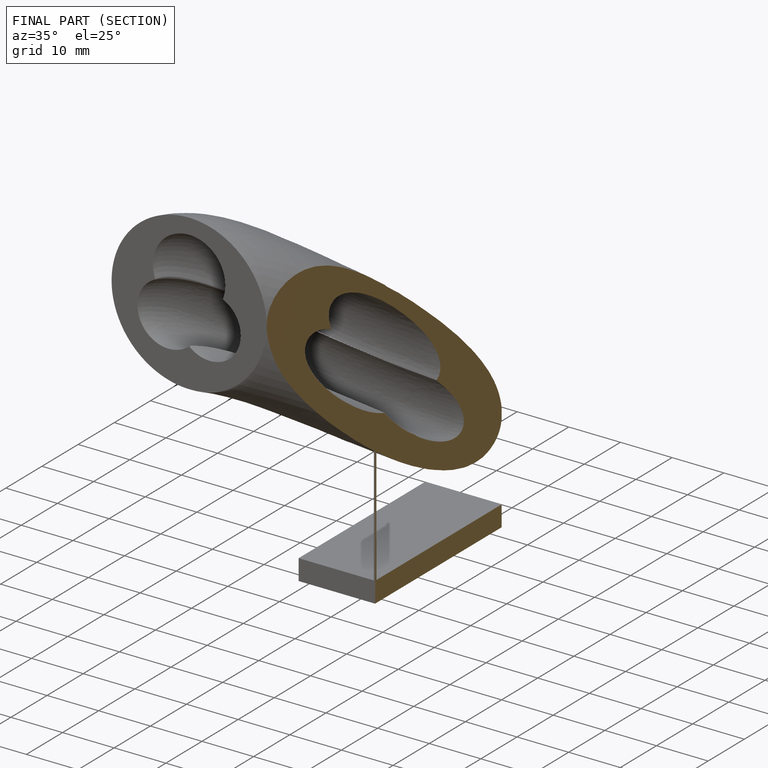
[diagram: finished part — half-section view (interior)]
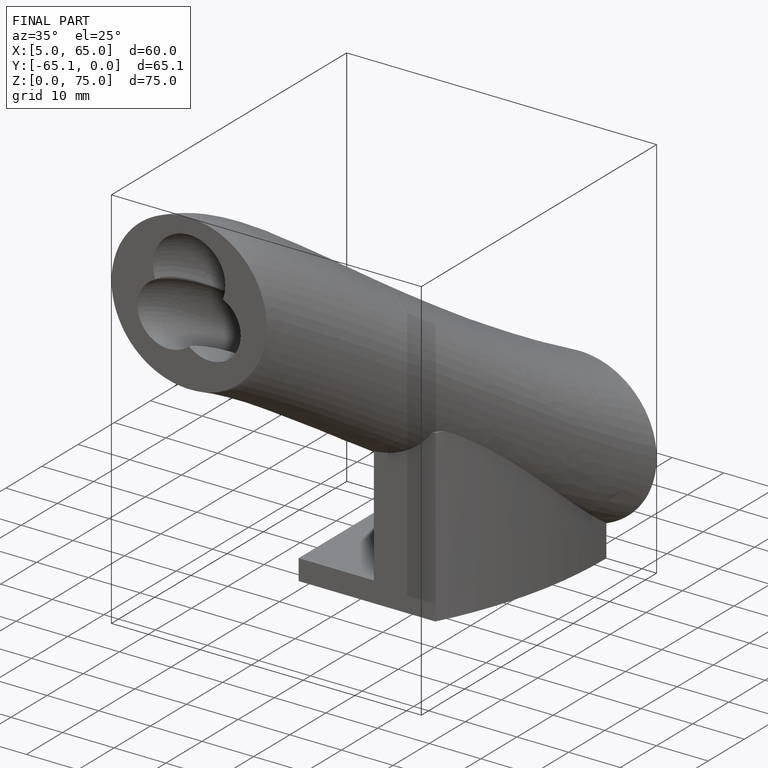
[diagram: finished part — iso view with bounding-box wireframe]
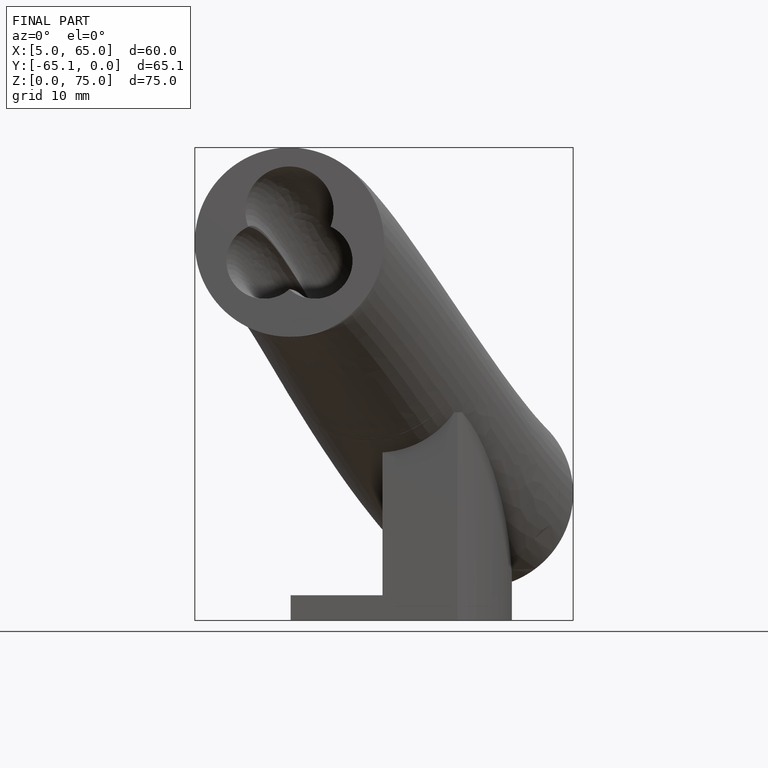
[diagram: finished part — front view with bounding-box wireframe]
